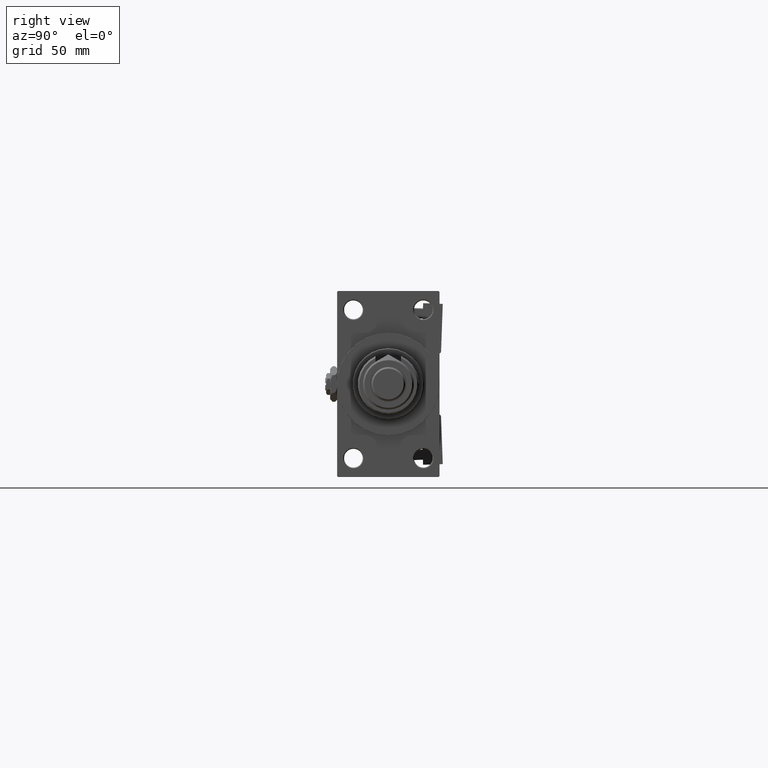
[diagram: clean part render]
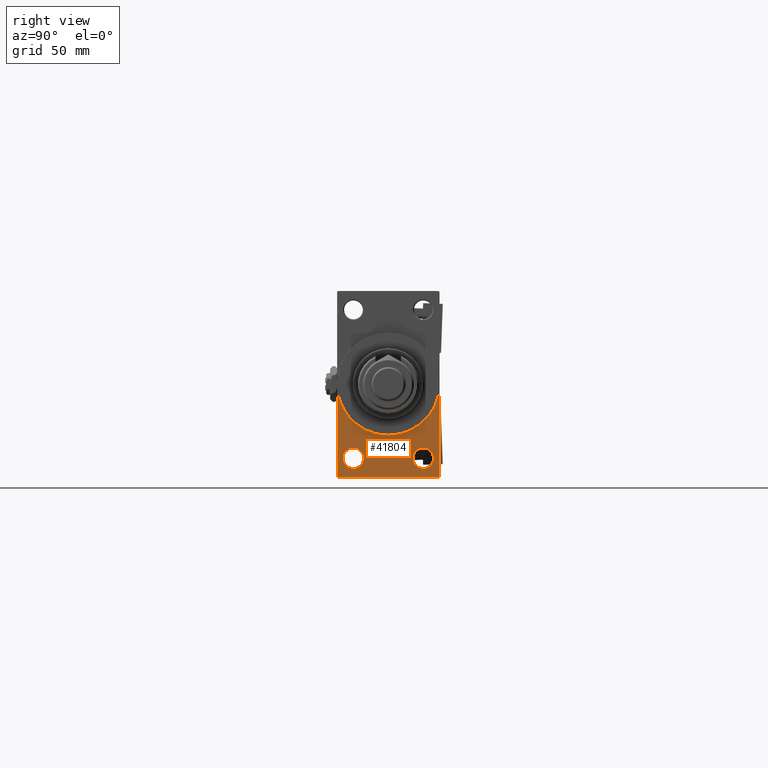
[diagram: same view with one face highlighted and labeled with its STEP entity id]
A machine part, right view. The second image highlights one B-rep face of the part: STEP entity #41804.
In plain terms, the highlighted planar face has unit normal (-1, 0, 0).
Its self-contained STEP definition (entity closure, byte-faithful):
#693 = ORIENTED_EDGE ( 'NONE', *, *, #37520, .T. ) ;
#736 = DIRECTION ( 'NONE',  ( 0.000000000000000000, 0.000000000000000000, -1.000000000000000000 ) ) ;
#2228 = DIRECTION ( 'NONE',  ( 1.000000000000000000, 0.000000000000000000, 0.000000000000000000 ) ) ;
#3149 = LINE ( 'NONE', #10849, #10486 ) ;
#3317 = CARTESIAN_POINT ( 'NONE',  ( 278.0000000000000000, 29.99999999999999645, 54.49999999999999289 ) ) ;
#5146 = CARTESIAN_POINT ( 'NONE',  ( 278.0000000000000000, -30.00000000000000000, -54.00000000000001421 ) ) ;
#5405 = DIRECTION ( 'NONE',  ( 1.000000000000000000, 0.000000000000000000, 0.000000000000000000 ) ) ;
#5657 = CARTESIAN_POINT ( 'NONE',  ( 278.0000000000000000, -20.50000000000000000, -37.49999999999979394 ) ) ;
#6177 = CARTESIAN_POINT ( 'NONE',  ( 278.0000000000000000, 20.50000000000000000, -43.50000000000000000 ) ) ;
#6632 = LINE ( 'NONE', #3317, #42743 ) ;
#6689 = CARTESIAN_POINT ( 'NONE',  ( 278.0000000000000000, 29.99999999999999645, -53.99999999999996447 ) ) ;
#6983 = DIRECTION ( 'NONE',  ( 0.000000000000000000, 0.000000000000000000, 1.000000000000000000 ) ) ;
#7218 = ORIENTED_EDGE ( 'NONE', *, *, #39872, .T. ) ;
#8212 = VERTEX_POINT ( 'NONE', #31025 ) ;
#8614 = VERTEX_POINT ( 'NONE', #17518 ) ;
#8647 = ORIENTED_EDGE ( 'NONE', *, *, #21388, .T. ) ;
#8685 = DIRECTION ( 'NONE',  ( 0.000000000000000000, 0.000000000000000000, 1.000000000000000000 ) ) ;
#8719 = CARTESIAN_POINT ( 'NONE',  ( 278.0000000000000000, 0.000000000000000000, 0.000000000000000000 ) ) ;
#8924 = EDGE_CURVE ( 'NONE', #8614, #8212, #46986, .T. ) ;
#8944 = EDGE_CURVE ( 'NONE', #10791, #38281, #47939, .T. ) ;
#8968 = DIRECTION ( 'NONE',  ( -1.000000000000000000, 0.000000000000000000, -0.000000000000000000 ) ) ;
#9395 = EDGE_LOOP ( 'NONE', ( #693, #8647 ) ) ;
#9942 = AXIS2_PLACEMENT_3D ( 'NONE', #8719, #5405, #50757 ) ;
#10298 = CARTESIAN_POINT ( 'NONE',  ( 278.0000000000000000, 29.99999999999999645, -53.99999999999996447 ) ) ;
#10486 = VECTOR ( 'NONE', #49293, 1000.000000000000000 ) ;
#10791 = VERTEX_POINT ( 'NONE', #18928 ) ;
#10849 = CARTESIAN_POINT ( 'NONE',  ( 278.0000000000000000, 29.99999999999999645, -54.49999999999999289 ) ) ;
#11739 = FACE_BOUND ( 'NONE', #9395, .T. ) ;
#11867 = VECTOR ( 'NONE', #40771, 1000.000000000000000 ) ;
#12497 = VECTOR ( 'NONE', #51430, 1000.000000000000000 ) ;
#12717 = EDGE_CURVE ( 'NONE', #23637, #38281, #6632, .T. ) ;
#13238 = LINE ( 'NONE', #30546, #12497 ) ;
#13331 = CARTESIAN_POINT ( 'NONE',  ( 278.0000000000000000, -20.50000000000000000, -43.50000000000000000 ) ) ;
#13376 = CIRCLE ( 'NONE', #9942, 30.00000000000000000 ) ;
#15191 = ORIENTED_EDGE ( 'NONE', *, *, #47175, .F. ) ;
#15385 = DIRECTION ( 'NONE',  ( 0.000000000000000000, 0.000000000000000000, -1.000000000000000000 ) ) ;
#16400 = DIRECTION ( 'NONE',  ( -1.000000000000000000, 0.000000000000000000, -0.000000000000000000 ) ) ;
#17015 = EDGE_CURVE ( 'NONE', #51248, #23770, #18012, .T. ) ;
#17518 = CARTESIAN_POINT ( 'NONE',  ( 278.0000000000000000, 20.50000000000000000, -37.49999999999979394 ) ) ;
#18012 = LINE ( 'NONE', #25992, #29627 ) ;
#18928 = CARTESIAN_POINT ( 'NONE',  ( 278.0000000000000000, 29.49999999999999645, -54.49999999999999289 ) ) ;
#18984 = CARTESIAN_POINT ( 'NONE',  ( 278.0000000000000000, -20.50000000000000000, -49.50000000000019895 ) ) ;
#20149 = CARTESIAN_POINT ( 'NONE',  ( 278.0000000000000000, -30.00000000000000000, 0.000000000000000000 ) ) ;
#20642 = AXIS2_PLACEMENT_3D ( 'NONE', #6177, #27312, #6983 ) ;
#20783 = CARTESIAN_POINT ( 'NONE',  ( 278.0000000000000000, 0.000000000000000000, 0.000000000000000000 ) ) ;
#20831 = CIRCLE ( 'NONE', #31382, 30.00000000000000000 ) ;
#21277 = VERTEX_POINT ( 'NONE', #45511 ) ;
#21388 = EDGE_CURVE ( 'NONE', #36700, #44558, #47510, .T. ) ;
#23093 = CARTESIAN_POINT ( 'NONE',  ( 278.0000000000000000, 0.000000000000000000, 0.000000000000000000 ) ) ;
#23374 = EDGE_LOOP ( 'NONE', ( #52088, #46891 ) ) ;
#23637 = VERTEX_POINT ( 'NONE', #43654 ) ;
#23770 = VERTEX_POINT ( 'NONE', #5146 ) ;
#25073 = ORIENTED_EDGE ( 'NONE', *, *, #12717, .F. ) ;
#25992 = CARTESIAN_POINT ( 'NONE',  ( 278.0000000000000000, -30.00000000000000000, 54.50000000000000000 ) ) ;
#26303 = DIRECTION ( 'NONE',  ( -1.000000000000000000, 0.000000000000000000, -0.000000000000000000 ) ) ;
#26891 = EDGE_CURVE ( 'NONE', #21277, #23637, #20831, .T. ) ;
#27312 = DIRECTION ( 'NONE',  ( -1.000000000000000000, 0.000000000000000000, -0.000000000000000000 ) ) ;
#28304 = DIRECTION ( 'NONE',  ( 0.000000000000000000, 0.000000000000000000, -1.000000000000000000 ) ) ;
#28504 = DIRECTION ( 'NONE',  ( 0.000000000000000000, 0.000000000000000000, 1.000000000000000000 ) ) ;
#29032 = DIRECTION ( 'NONE',  ( -0.000000000000000000, 0.000000000000000000, 1.000000000000000000 ) ) ;
#29617 = ORIENTED_EDGE ( 'NONE', *, *, #26891, .F. ) ;
#29627 = VECTOR ( 'NONE', #736, 1000.000000000000000 ) ;
#30546 = CARTESIAN_POINT ( 'NONE',  ( 278.0000000000000000, -29.50000000000002842, -54.50000000000000000 ) ) ;
#30623 = EDGE_CURVE ( 'NONE', #10791, #35431, #3149, .T. ) ;
#31025 = CARTESIAN_POINT ( 'NONE',  ( 278.0000000000000000, 20.50000000000000000, -49.50000000000019895 ) ) ;
#31233 = CARTESIAN_POINT ( 'NONE',  ( 278.0000000000000000, 20.50000000000000000, -43.50000000000000000 ) ) ;
#31289 = EDGE_LOOP ( 'NONE', ( #46449, #7218, #48026, #44505, #25073, #29617, #15191 ) ) ;
#31382 = AXIS2_PLACEMENT_3D ( 'NONE', #23093, #2228, #15385 ) ;
#32388 = CARTESIAN_POINT ( 'NONE',  ( 278.0000000000000000, -29.50000000000002842, -54.50000000000000000 ) ) ;
#35431 = VERTEX_POINT ( 'NONE', #32388 ) ;
#36118 = CIRCLE ( 'NONE', #40483, 6.000000000000199840 ) ;
#36700 = VERTEX_POINT ( 'NONE', #5657 ) ;
#37162 = AXIS2_PLACEMENT_3D ( 'NONE', #20783, #8968, #29032 ) ;
#37520 = EDGE_CURVE ( 'NONE', #44558, #36700, #36118, .T. ) ;
#37526 = DIRECTION ( 'NONE',  ( -1.000000000000000000, 0.000000000000000000, -0.000000000000000000 ) ) ;
#37817 = FACE_OUTER_BOUND ( 'NONE', #31289, .T. ) ;
#38281 = VERTEX_POINT ( 'NONE', #6689 ) ;
#38363 = PLANE ( 'NONE',  #37162 ) ;
#39872 = EDGE_CURVE ( 'NONE', #23770, #35431, #13238, .T. ) ;
#40483 = AXIS2_PLACEMENT_3D ( 'NONE', #49928, #16400, #28504 ) ;
#40771 = DIRECTION ( 'NONE',  ( -0.000000000000000000, 0.7071067811865279218, 0.7071067811865672237 ) ) ;
#41804 = ADVANCED_FACE ( 'NONE', ( #11739, #49648, #37817 ), #38363, .F. ) ;
#42743 = VECTOR ( 'NONE', #28304, 1000.000000000000000 ) ;
#43066 = DIRECTION ( 'NONE',  ( 0.000000000000000000, 0.000000000000000000, 1.000000000000000000 ) ) ;
#43654 = CARTESIAN_POINT ( 'NONE',  ( 278.0000000000000000, 30.00000000000000000, 0.000000000000000000 ) ) ;
#44505 = ORIENTED_EDGE ( 'NONE', *, *, #8944, .T. ) ;
#44558 = VERTEX_POINT ( 'NONE', #18984 ) ;
#45511 = CARTESIAN_POINT ( 'NONE',  ( 278.0000000000000000, 3.673940397442059178E-15, -30.00000000000000000 ) ) ;
#46449 = ORIENTED_EDGE ( 'NONE', *, *, #17015, .T. ) ;
#46792 = AXIS2_PLACEMENT_3D ( 'NONE', #31233, #26303, #43066 ) ;
#46891 = ORIENTED_EDGE ( 'NONE', *, *, #8924, .T. ) ;
#46986 = CIRCLE ( 'NONE', #20642, 6.000000000000199840 ) ;
#47175 = EDGE_CURVE ( 'NONE', #51248, #21277, #13376, .T. ) ;
#47510 = CIRCLE ( 'NONE', #53651, 6.000000000000199840 ) ;
#47939 = LINE ( 'NONE', #10298, #11867 ) ;
#48026 = ORIENTED_EDGE ( 'NONE', *, *, #30623, .F. ) ;
#48078 = EDGE_CURVE ( 'NONE', #8212, #8614, #49463, .T. ) ;
#49293 = DIRECTION ( 'NONE',  ( 0.000000000000000000, -1.000000000000000000, -1.156482317317871478E-16 ) ) ;
#49463 = CIRCLE ( 'NONE', #46792, 6.000000000000199840 ) ;
#49648 = FACE_BOUND ( 'NONE', #23374, .T. ) ;
#49928 = CARTESIAN_POINT ( 'NONE',  ( 278.0000000000000000, -20.50000000000000000, -43.50000000000000000 ) ) ;
#50757 = DIRECTION ( 'NONE',  ( 0.000000000000000000, 0.000000000000000000, -1.000000000000000000 ) ) ;
#51248 = VERTEX_POINT ( 'NONE', #20149 ) ;
#51430 = DIRECTION ( 'NONE',  ( 0.000000000000000000, 0.7071067811865352493, -0.7071067811865597852 ) ) ;
#52088 = ORIENTED_EDGE ( 'NONE', *, *, #48078, .T. ) ;
#53651 = AXIS2_PLACEMENT_3D ( 'NONE', #13331, #37526, #8685 ) ;